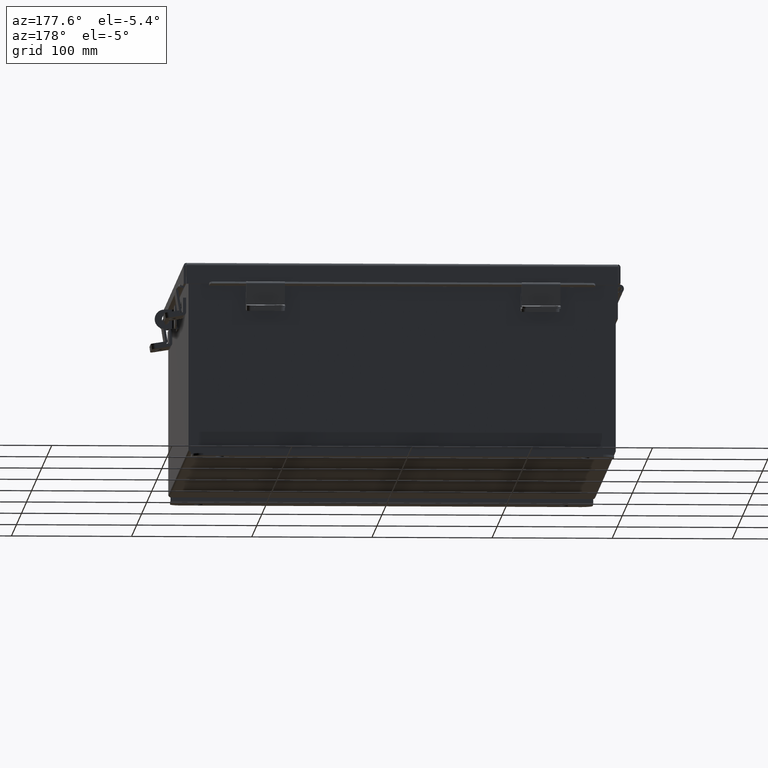
[diagram: clean part render]
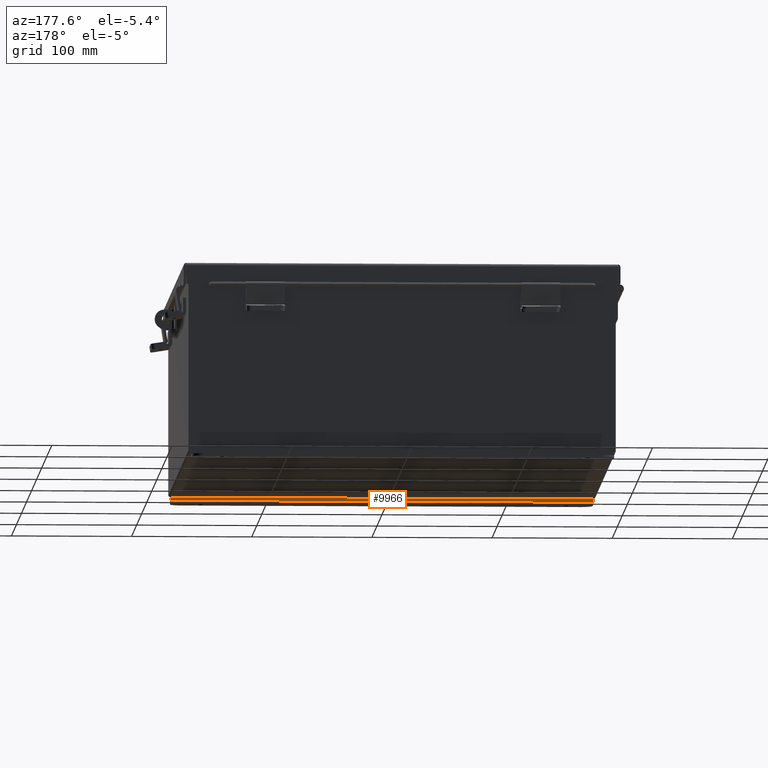
[diagram: same view with one face highlighted and labeled with its STEP entity id]
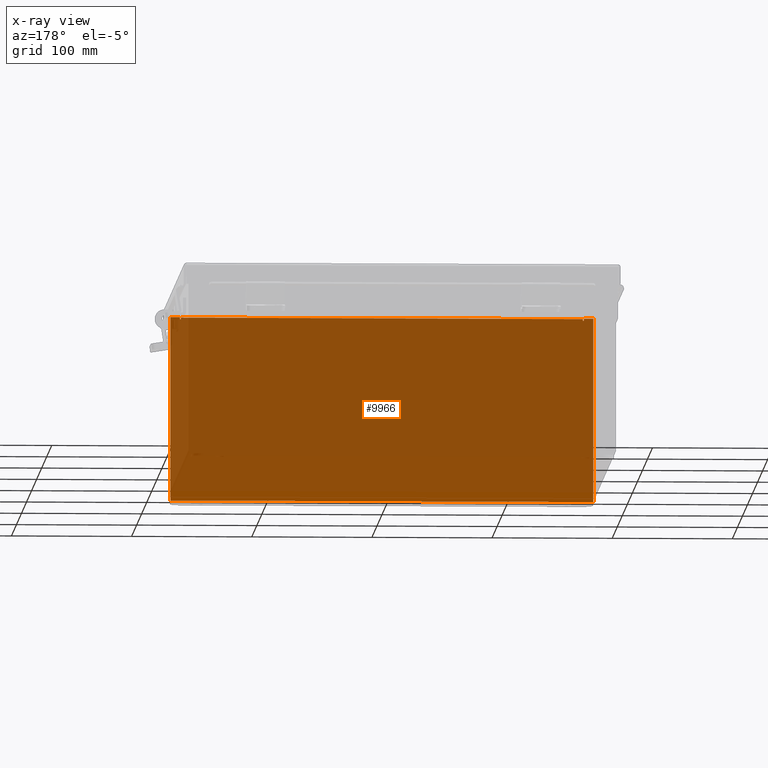
[diagram: x-ray of the same camera — body ghosted, the highlighted face saturated]
A machine part, auxiliary view. The second image highlights one B-rep face of the part: STEP entity #9966.
The next image is the same camera in x-ray: the body ghosted, the highlighted face saturated — about 95% of this face is hidden behind the body in this view.
In plain terms, the highlighted planar face has unit normal (-0, 1, -0).
Its self-contained STEP definition (entity closure, byte-faithful):
#390 = ORIENTED_EDGE ( 'NONE', *, *, #10934, .F. ) ;
#408 = CIRCLE ( 'NONE', #7177, 0.01867500000000003900 ) ;
#410 = VERTEX_POINT ( 'NONE', #10371 ) ;
#502 = VERTEX_POINT ( 'NONE', #5222 ) ;
#551 = LINE ( 'NONE', #13903, #12898 ) ;
#961 = VECTOR ( 'NONE', #19633, 39.37007874015748100 ) ;
#979 = EDGE_LOOP ( 'NONE', ( #13420, #15133, #9875, #3853, #11037, #8175, #390, #9430, #9052, #4221, #7194, #18458 ) ) ;
#1058 = LINE ( 'NONE', #18867, #6120 ) ;
#1187 = DIRECTION ( 'NONE',  ( 0.0000000000000000000, 0.0000000000000000000, -1.000000000000000000 ) ) ;
#1258 = LINE ( 'NONE', #14300, #16276 ) ;
#1550 = DIRECTION ( 'NONE',  ( 0.0000000000000000000, 0.0000000000000000000, 1.000000000000000000 ) ) ;
#2591 = EDGE_CURVE ( 'NONE', #19329, #19972, #11628, .T. ) ;
#2597 = DIRECTION ( 'NONE',  ( 0.0000000000000000000, 0.0000000000000000000, -1.000000000000000000 ) ) ;
#2822 = VERTEX_POINT ( 'NONE', #11744 ) ;
#3062 = CARTESIAN_POINT ( 'NONE',  ( 0.0000000000000000000, -0.07470000000000015500, 0.0000000000000000000 ) ) ;
#3314 = DIRECTION ( 'NONE',  ( 1.000000000000000000, 4.910036603141682400E-031, 0.0000000000000000000 ) ) ;
#3340 = EDGE_CURVE ( 'NONE', #410, #9934, #9647, .T. ) ;
#3853 = ORIENTED_EDGE ( 'NONE', *, *, #2591, .F. ) ;
#4221 = ORIENTED_EDGE ( 'NONE', *, *, #11383, .F. ) ;
#4369 = VECTOR ( 'NONE', #1550, 39.37007874015748100 ) ;
#4584 = PLANE ( 'NONE',  #12701 ) ;
#4857 = CARTESIAN_POINT ( 'NONE',  ( -6.619649999999990300, -0.07469999999999033000, 2.925300000000001300 ) ) ;
#5085 = CARTESIAN_POINT ( 'NONE',  ( -6.600974999999990300, -0.07469999999998923300, 2.874949999999999700 ) ) ;
#5222 = CARTESIAN_POINT ( 'NONE',  ( 6.582300000000007100, -0.07470000000000015500, 2.912299999999998800 ) ) ;
#5270 = CARTESIAN_POINT ( 'NONE',  ( -6.925299999999992000, -0.07469999999999142600, 2.925300000000000000 ) ) ;
#5569 = EDGE_CURVE ( 'NONE', #11943, #11591, #15890, .T. ) ;
#6120 = VECTOR ( 'NONE', #14907, 39.37007874015748100 ) ;
#6255 = EDGE_CURVE ( 'NONE', #15825, #7581, #1058, .T. ) ;
#6324 = CARTESIAN_POINT ( 'NONE',  ( -6.925299999999992000, -0.07469999999999142600, 2.925300000000000000 ) ) ;
#6477 = VECTOR ( 'NONE', #7892, 39.37007874015748100 ) ;
#6640 = DIRECTION ( 'NONE',  ( 0.0000000000000000000, 0.0000000000000000000, -1.000000000000000000 ) ) ;
#6906 = AXIS2_PLACEMENT_3D ( 'NONE', #19805, #10415, #1187 ) ;
#7177 = AXIS2_PLACEMENT_3D ( 'NONE', #5085, #15978, #6640 ) ;
#7194 = ORIENTED_EDGE ( 'NONE', *, *, #7547, .F. ) ;
#7230 = CARTESIAN_POINT ( 'NONE',  ( -6.925299999999992000, -0.07469999999999142600, 2.925300000000000000 ) ) ;
#7235 = EDGE_CURVE ( 'NONE', #19329, #11591, #551, .T. ) ;
#7547 = EDGE_CURVE ( 'NONE', #9934, #502, #1258, .T. ) ;
#7569 = VECTOR ( 'NONE', #2597, 39.37007874015748100 ) ;
#7581 = VERTEX_POINT ( 'NONE', #19088 ) ;
#7666 = VECTOR ( 'NONE', #3314, 39.37007874015748100 ) ;
#7892 = DIRECTION ( 'NONE',  ( 0.0000000000000000000, 2.272018564740578300E-014, -1.000000000000000000 ) ) ;
#7972 = CARTESIAN_POINT ( 'NONE',  ( 6.925300000000007100, -0.07470000000000015500, 2.925300000000000000 ) ) ;
#8175 = ORIENTED_EDGE ( 'NONE', *, *, #5569, .F. ) ;
#8323 = DIRECTION ( 'NONE',  ( 0.0000000000000000000, 0.0000000000000000000, -1.000000000000000000 ) ) ;
#8828 = EDGE_CURVE ( 'NONE', #19972, #2822, #12814, .T. ) ;
#9052 = ORIENTED_EDGE ( 'NONE', *, *, #17169, .F. ) ;
#9245 = DIRECTION ( 'NONE',  ( 0.0000000000000000000, 0.0000000000000000000, -1.000000000000000000 ) ) ;
#9430 = ORIENTED_EDGE ( 'NONE', *, *, #6255, .F. ) ;
#9647 = LINE ( 'NONE', #19562, #961 ) ;
#9875 = ORIENTED_EDGE ( 'NONE', *, *, #8828, .F. ) ;
#9934 = VERTEX_POINT ( 'NONE', #10751 ) ;
#9966 = ADVANCED_FACE ( 'NONE', ( #17141 ), #4584, .T. ) ;
#10159 = CARTESIAN_POINT ( 'NONE',  ( -6.925299999999992000, -0.07469999999999142600, 2.925300000000000000 ) ) ;
#10371 = CARTESIAN_POINT ( 'NONE',  ( -6.582299999999990300, -0.07469999999999142600, 2.874949999999999700 ) ) ;
#10415 = DIRECTION ( 'NONE',  ( -4.910036603141682400E-031, -1.000000000000000000, 0.0000000000000000000 ) ) ;
#10751 = CARTESIAN_POINT ( 'NONE',  ( -6.582299999999990300, -0.07469999999999142600, 2.912299999999998800 ) ) ;
#10934 = EDGE_CURVE ( 'NONE', #7581, #11943, #11257, .T. ) ;
#11037 = ORIENTED_EDGE ( 'NONE', *, *, #7235, .T. ) ;
#11067 = DIRECTION ( 'NONE',  ( 1.000000000000000000, 4.910036603141682400E-031, -0.0000000000000000000 ) ) ;
#11257 = LINE ( 'NONE', #7230, #18078 ) ;
#11323 = EDGE_CURVE ( 'NONE', #13332, #410, #408, .T. ) ;
#11383 = EDGE_CURVE ( 'NONE', #502, #11515, #11746, .T. ) ;
#11515 = VERTEX_POINT ( 'NONE', #17926 ) ;
#11591 = VERTEX_POINT ( 'NONE', #16496 ) ;
#11628 = LINE ( 'NONE', #10159, #4369 ) ;
#11744 = CARTESIAN_POINT ( 'NONE',  ( -6.619649999999990300, -0.07469999999999142600, 2.925300000000001300 ) ) ;
#11746 = LINE ( 'NONE', #12999, #15442 ) ;
#11840 = CIRCLE ( 'NONE', #6906, 0.01867500000000003900 ) ;
#11943 = VERTEX_POINT ( 'NONE', #7972 ) ;
#12204 = DIRECTION ( 'NONE',  ( 1.000000000000000000, 4.910036603141682400E-031, -0.0000000000000000000 ) ) ;
#12701 = AXIS2_PLACEMENT_3D ( 'NONE', #3062, #18624, #9245 ) ;
#12814 = LINE ( 'NONE', #6324, #7666 ) ;
#12898 = VECTOR ( 'NONE', #12204, 39.37007874015748100 ) ;
#12999 = CARTESIAN_POINT ( 'NONE',  ( 6.582300000000007100, -0.07469999999999797600, 2.912299999999998800 ) ) ;
#13332 = VERTEX_POINT ( 'NONE', #19340 ) ;
#13420 = ORIENTED_EDGE ( 'NONE', *, *, #11323, .F. ) ;
#13903 = CARTESIAN_POINT ( 'NONE',  ( -6.925299999999992000, -0.07470000000000015500, -3.099299999999999500 ) ) ;
#14300 = CARTESIAN_POINT ( 'NONE',  ( -6.582299999999992000, -0.07469999999998923300, 2.912299999999998800 ) ) ;
#14907 = DIRECTION ( 'NONE',  ( 2.170286390199955400E-014, -2.272018564740578300E-014, 1.000000000000000000 ) ) ;
#15133 = ORIENTED_EDGE ( 'NONE', *, *, #17447, .F. ) ;
#15442 = VECTOR ( 'NONE', #8323, 39.37007874015748100 ) ;
#15825 = VERTEX_POINT ( 'NONE', #17621 ) ;
#15890 = LINE ( 'NONE', #19684, #7569 ) ;
#15978 = DIRECTION ( 'NONE',  ( -4.910036603141682400E-031, -1.000000000000000000, 0.0000000000000000000 ) ) ;
#16276 = VECTOR ( 'NONE', #11067, 39.37007874015748100 ) ;
#16496 = CARTESIAN_POINT ( 'NONE',  ( 6.925300000000007100, -0.07470000000000781600, -3.099299999999995100 ) ) ;
#17141 = FACE_OUTER_BOUND ( 'NONE', #979, .T. ) ;
#17169 = EDGE_CURVE ( 'NONE', #11515, #15825, #11840, .T. ) ;
#17447 = EDGE_CURVE ( 'NONE', #2822, #13332, #17918, .T. ) ;
#17621 = CARTESIAN_POINT ( 'NONE',  ( 6.619650000000007100, -0.07470000000000015500, 2.874949999999999700 ) ) ;
#17918 = LINE ( 'NONE', #4857, #6477 ) ;
#17926 = CARTESIAN_POINT ( 'NONE',  ( 6.582300000000007100, -0.07470000000000015500, 2.874949999999997900 ) ) ;
#18078 = VECTOR ( 'NONE', #18158, 39.37007874015748100 ) ;
#18158 = DIRECTION ( 'NONE',  ( 1.000000000000000000, 4.910036603141682400E-031, 0.0000000000000000000 ) ) ;
#18458 = ORIENTED_EDGE ( 'NONE', *, *, #3340, .F. ) ;
#18624 = DIRECTION ( 'NONE',  ( -4.910036603141682400E-031, -1.000000000000000000, -0.0000000000000000000 ) ) ;
#18867 = CARTESIAN_POINT ( 'NONE',  ( 6.619650000000007100, -0.07469999999999797600, 2.874949999999999700 ) ) ;
#19088 = CARTESIAN_POINT ( 'NONE',  ( 6.619650000000008000, -0.07470000000000015500, 2.925300000000001300 ) ) ;
#19199 = CARTESIAN_POINT ( 'NONE',  ( -6.925299999999991100, -0.07470000000000015500, -3.099299999999999500 ) ) ;
#19329 = VERTEX_POINT ( 'NONE', #19199 ) ;
#19340 = CARTESIAN_POINT ( 'NONE',  ( -6.619649999999990300, -0.07469999999999142600, 2.874949999999999700 ) ) ;
#19562 = CARTESIAN_POINT ( 'NONE',  ( -6.582299999999990300, -0.07469999999998923300, 2.874949999999999700 ) ) ;
#19633 = DIRECTION ( 'NONE',  ( 0.0000000000000000000, 0.0000000000000000000, 1.000000000000000000 ) ) ;
#19684 = CARTESIAN_POINT ( 'NONE',  ( 6.925300000000007100, -0.07470000000000015500, 2.925300000000000000 ) ) ;
#19805 = CARTESIAN_POINT ( 'NONE',  ( 6.600975000000006300, -0.07469999999999797600, 2.874949999999999700 ) ) ;
#19972 = VERTEX_POINT ( 'NONE', #5270 ) ;